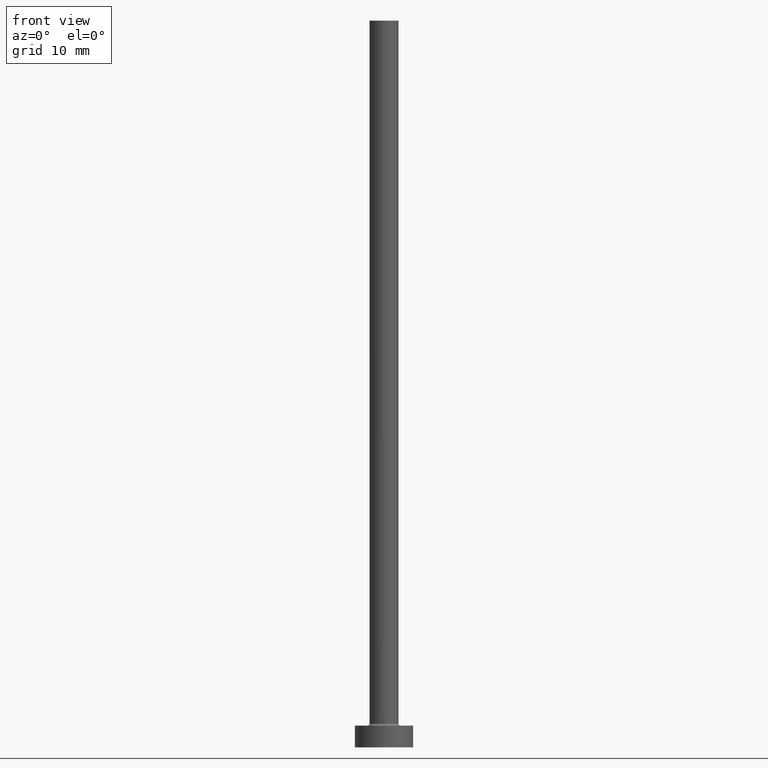
[diagram: clean part render]
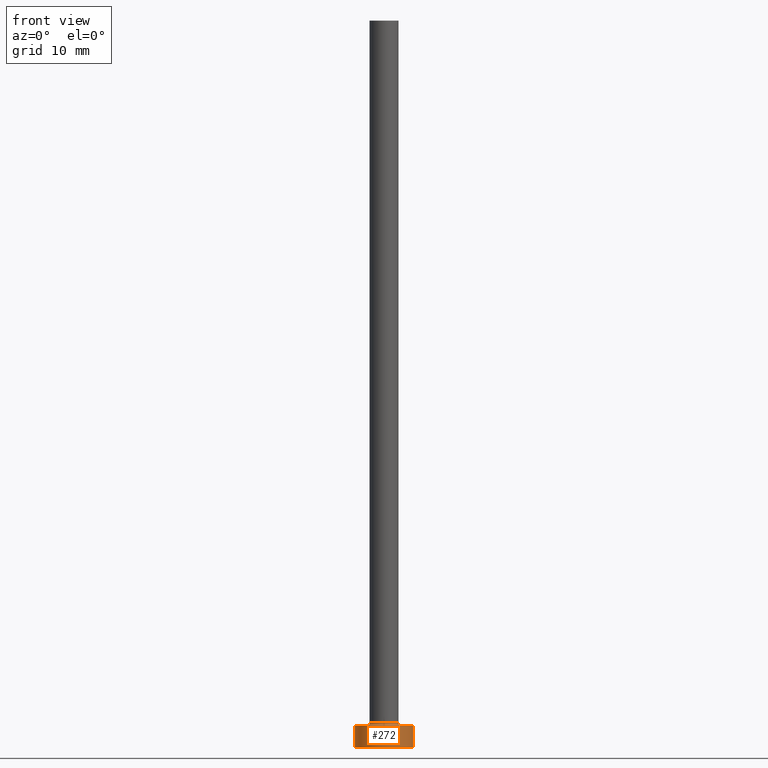
[diagram: same view with one face highlighted and labeled with its STEP entity id]
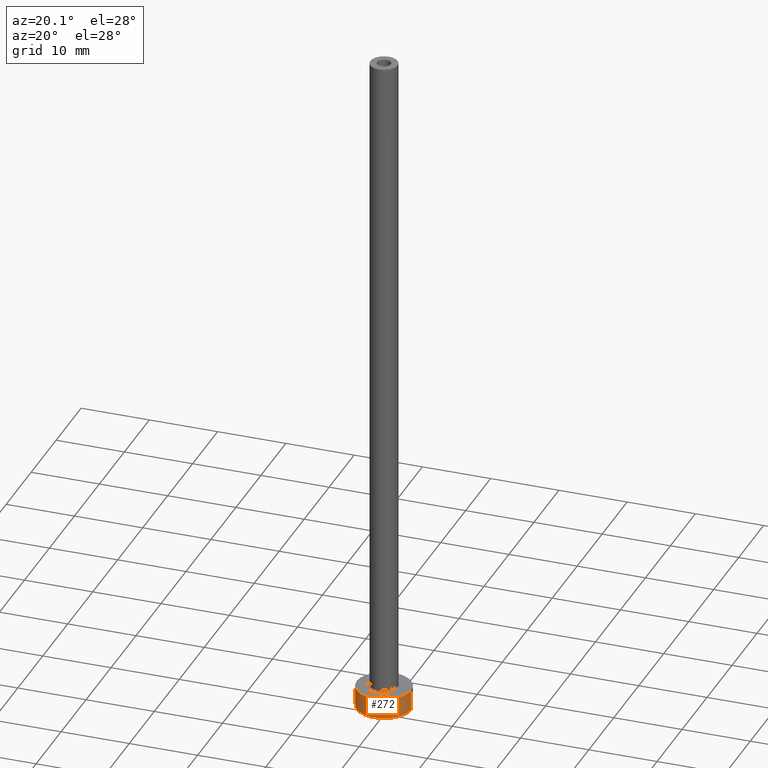
[diagram: same view with one face highlighted and labeled with its STEP entity id]
A machine part, front view. The second image highlights one B-rep face of the part: STEP entity #272.
A second angle (auxiliary view) of the same face is appended — the face is thin or edge-on in the first view.
In plain terms, the highlighted cylindrical surface (edge-blend (fillet) strip) has radius 4 mm, axis along (-0, -0, -1).
Its self-contained STEP definition (entity closure, byte-faithful):
#3 = CARTESIAN_POINT ( 'NONE',  ( 0.000000000000000000, 0.000000000000000000, 3.000000000000000000 ) ) ;
#6 = CARTESIAN_POINT ( 'NONE',  ( -4.000000000000000000, 0.000000000000000000, 0.000000000000000000 ) ) ;
#13 = EDGE_LOOP ( 'NONE', ( #83, #331, #319, #382 ) ) ;
#45 = CIRCLE ( 'NONE', #320, 4.000000000000000000 ) ;
#47 = DIRECTION ( 'NONE',  ( -0.000000000000000000, -0.000000000000000000, -1.000000000000000000 ) ) ;
#52 = VERTEX_POINT ( 'NONE', #88 ) ;
#53 = CARTESIAN_POINT ( 'NONE',  ( 4.000000000000000000, 4.898587196589412829E-16, 0.000000000000000000 ) ) ;
#54 = VERTEX_POINT ( 'NONE', #53 ) ;
#58 = CARTESIAN_POINT ( 'NONE',  ( 0.000000000000000000, 0.000000000000000000, 0.000000000000000000 ) ) ;
#75 = CARTESIAN_POINT ( 'NONE',  ( -4.000000000000000000, 0.000000000000000000, 3.000000000000000000 ) ) ;
#83 = ORIENTED_EDGE ( 'NONE', *, *, #314, .F. ) ;
#88 = CARTESIAN_POINT ( 'NONE',  ( -4.000000000000000000, 0.000000000000000000, 3.000000000000000000 ) ) ;
#94 = CARTESIAN_POINT ( 'NONE',  ( 0.000000000000000000, 0.000000000000000000, 3.000000000000000000 ) ) ;
#105 = DIRECTION ( 'NONE',  ( -1.000000000000000000, 0.000000000000000000, 0.000000000000000000 ) ) ;
#135 = DIRECTION ( 'NONE',  ( -0.000000000000000000, -0.000000000000000000, -1.000000000000000000 ) ) ;
#158 = LINE ( 'NONE', #458, #267 ) ;
#166 = FACE_OUTER_BOUND ( 'NONE', #13, .T. ) ;
#178 = DIRECTION ( 'NONE',  ( 0.000000000000000000, 0.000000000000000000, 1.000000000000000000 ) ) ;
#225 = EDGE_CURVE ( 'NONE', #52, #237, #45, .T. ) ;
#229 = VECTOR ( 'NONE', #47, 1000.000000000000000 ) ;
#237 = VERTEX_POINT ( 'NONE', #392 ) ;
#238 = DIRECTION ( 'NONE',  ( 1.000000000000000000, 0.000000000000000000, 0.000000000000000000 ) ) ;
#244 = DIRECTION ( 'NONE',  ( 0.000000000000000000, 0.000000000000000000, 1.000000000000000000 ) ) ;
#267 = VECTOR ( 'NONE', #405, 1000.000000000000000 ) ;
#272 = ADVANCED_FACE ( 'NONE', ( #166 ), #326, .T. ) ;
#294 = AXIS2_PLACEMENT_3D ( 'NONE', #3, #135, #105 ) ;
#314 = EDGE_CURVE ( 'NONE', #237, #54, #158, .T. ) ;
#319 = ORIENTED_EDGE ( 'NONE', *, *, #342, .T. ) ;
#320 = AXIS2_PLACEMENT_3D ( 'NONE', #94, #244, #238 ) ;
#326 = CYLINDRICAL_SURFACE ( 'NONE', #294, 4.000000000000000000 ) ;
#331 = ORIENTED_EDGE ( 'NONE', *, *, #225, .F. ) ;
#335 = LINE ( 'NONE', #75, #229 ) ;
#342 = EDGE_CURVE ( 'NONE', #52, #393, #335, .T. ) ;
#351 = EDGE_CURVE ( 'NONE', #393, #54, #352, .T. ) ;
#352 = CIRCLE ( 'NONE', #361, 4.000000000000000000 ) ;
#361 = AXIS2_PLACEMENT_3D ( 'NONE', #58, #178, #390 ) ;
#382 = ORIENTED_EDGE ( 'NONE', *, *, #351, .T. ) ;
#390 = DIRECTION ( 'NONE',  ( 1.000000000000000000, 0.000000000000000000, 0.000000000000000000 ) ) ;
#392 = CARTESIAN_POINT ( 'NONE',  ( 4.000000000000000000, 4.898587196589412829E-16, 3.000000000000000000 ) ) ;
#393 = VERTEX_POINT ( 'NONE', #6 ) ;
#405 = DIRECTION ( 'NONE',  ( -0.000000000000000000, -0.000000000000000000, -1.000000000000000000 ) ) ;
#458 = CARTESIAN_POINT ( 'NONE',  ( 4.000000000000000000, 4.898587196589412829E-16, 3.000000000000000000 ) ) ;